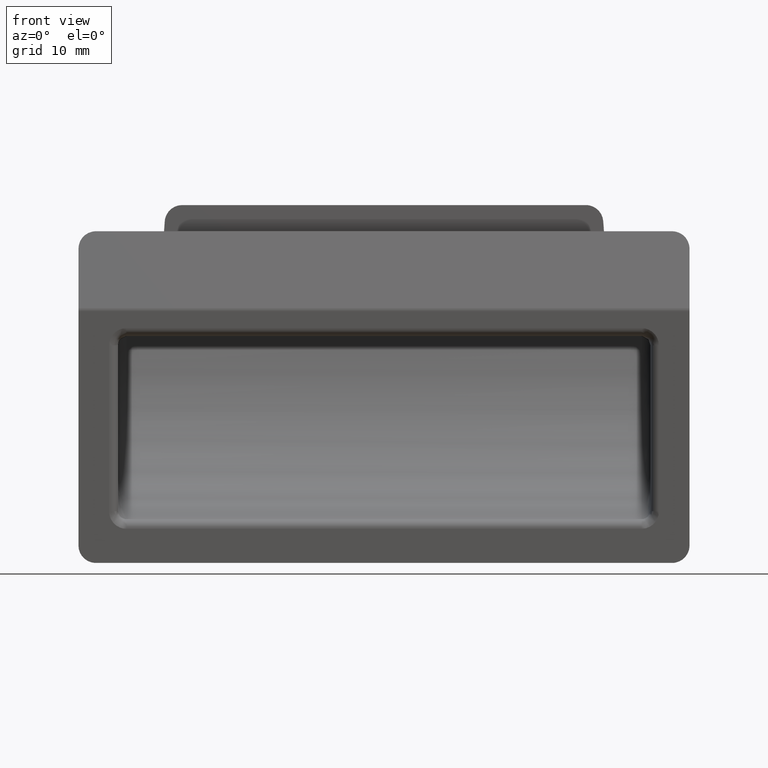
[diagram: clean part render]
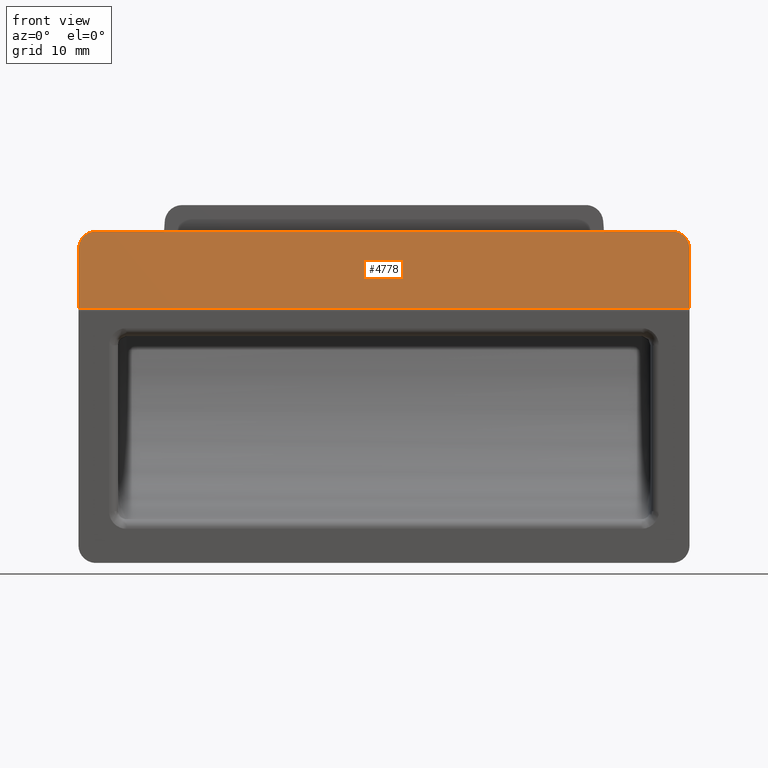
[diagram: same view with one face highlighted and labeled with its STEP entity id]
A machine part, front view. The second image highlights one B-rep face of the part: STEP entity #4778.
In plain terms, the highlighted face is a freeform B-spline surface patch.
Its self-contained STEP definition (entity closure, byte-faithful):
#4419=CARTESIAN_POINT('',(33.0,-1.214746215283140,18.250000000000000));
#4420=VERTEX_POINT('',#4419);
#4426=CARTESIAN_POINT('',(35.0,-1.836968437505390,16.250000000000000));
#4427=VERTEX_POINT('',#4426);
#4428=CARTESIAN_POINT('',(35.0,-1.836968437505390,16.250000000000000));
#4429=CARTESIAN_POINT('',(35.0,-1.214746215283139,18.250000000000007));
#4430=CARTESIAN_POINT('',(33.0,-1.214746215283139,18.250000000000000));
#4438=(BOUNDED_CURVE()B_SPLINE_CURVE(2,(#4428,#4429,#4430),.UNSPECIFIED.,.F.,.U.)CURVE()GEOMETRIC_REPRESENTATION_ITEM()QUASI_UNIFORM_CURVE()RATIONAL_B_SPLINE_CURVE((1.0,0.707106781186548,1.0))REPRESENTATION_ITEM(''));
#4439=EDGE_CURVE('',#4427,#4420,#4438,.T.);
#4480=CARTESIAN_POINT('',(-35.0,-1.836968437505390,16.250000000000000));
#4481=VERTEX_POINT('',#4480);
#4487=CARTESIAN_POINT('',(-33.0,-1.214746215283140,18.250000000000000));
#4488=VERTEX_POINT('',#4487);
#4489=CARTESIAN_POINT('',(-33.0,-1.214746215283140,18.250000000000000));
#4490=CARTESIAN_POINT('',(-35.0,-1.214746228395492,18.249999957853145));
#4491=CARTESIAN_POINT('',(-35.0,-1.836968437505390,16.250000000000000));
#4499=(BOUNDED_CURVE()B_SPLINE_CURVE(2,(#4489,#4490,#4491),.UNSPECIFIED.,.F.,.U.)CURVE()GEOMETRIC_REPRESENTATION_ITEM()QUASI_UNIFORM_CURVE()RATIONAL_B_SPLINE_CURVE((1.0,0.707106788637128,1.0))REPRESENTATION_ITEM(''));
#4500=EDGE_CURVE('',#4488,#4481,#4499,.T.);
#4666=CARTESIAN_POINT('',(-35.0,-3.954856776330780,9.442501768061590));
#4667=VERTEX_POINT('',#4666);
#4681=CARTESIAN_POINT('',(-35.0,-1.836968437505390,16.250000000000000));
#4682=CARTESIAN_POINT('',(-35.0,-3.954856776330780,9.442501768061590));
#4683=QUASI_UNIFORM_CURVE('',1,(#4681,#4682),.UNSPECIFIED.,.F.,.U.);
#4684=EDGE_CURVE('',#4481,#4667,#4683,.T.);
#4709=CARTESIAN_POINT('',(35.0,-3.954856776330780,9.442501768061590));
#4710=VERTEX_POINT('',#4709);
#4711=CARTESIAN_POINT('',(35.0,-1.836968437505390,16.250000000000000));
#4712=CARTESIAN_POINT('',(35.0,-3.954856776330780,9.442501768061590));
#4713=QUASI_UNIFORM_CURVE('',1,(#4711,#4712),.UNSPECIFIED.,.F.,.U.);
#4714=EDGE_CURVE('',#4427,#4710,#4713,.T.);
#4753=CARTESIAN_POINT('',(35.0,-3.954856776330780,9.442501768061590));
#4754=CARTESIAN_POINT('',(-35.0,-3.954856776330780,9.442501768061590));
#4755=QUASI_UNIFORM_CURVE('',1,(#4753,#4754),.UNSPECIFIED.,.F.,.U.);
#4756=EDGE_CURVE('',#4710,#4667,#4755,.T.);
#4761=CARTESIAN_POINT('',(-38.496499864326417,-4.091725293544274,9.002567248446912));
#4762=CARTESIAN_POINT('',(-38.496499864326417,-1.077877624574221,18.689934755850210));
#4763=CARTESIAN_POINT('',(38.496501741872720,-4.091725293544274,9.002567248446912));
#4764=CARTESIAN_POINT('',(38.496501741872720,-1.077877624574221,18.689934755850210));
#4765=B_SPLINE_SURFACE_WITH_KNOTS('',1,1,((#4761,#4763),(#4762,#4764)),.UNSPECIFIED.,.F.,.F.,.U.,(2,2),(2,2),(0.0,10.145361846442411),(0.0,76.993001606199130),.UNSPECIFIED.);
#4766=CARTESIAN_POINT('',(33.0,-1.214746215283140,18.250000000000000));
#4767=CARTESIAN_POINT('',(-33.0,-1.214746215283140,18.250000000000000));
#4768=QUASI_UNIFORM_CURVE('',1,(#4766,#4767),.UNSPECIFIED.,.F.,.U.);
#4769=EDGE_CURVE('',#4420,#4488,#4768,.T.);
#4770=ORIENTED_EDGE('',*,*,#4769,.T.);
#4771=ORIENTED_EDGE('',*,*,#4500,.T.);
#4772=ORIENTED_EDGE('',*,*,#4684,.T.);
#4773=ORIENTED_EDGE('',*,*,#4756,.F.);
#4774=ORIENTED_EDGE('',*,*,#4714,.F.);
#4775=ORIENTED_EDGE('',*,*,#4439,.T.);
#4776=EDGE_LOOP('',(#4770,#4771,#4772,#4773,#4774,#4775));
#4777=FACE_OUTER_BOUND('',#4776,.T.);
#4778=ADVANCED_FACE('',(#4777),#4765,.F.);